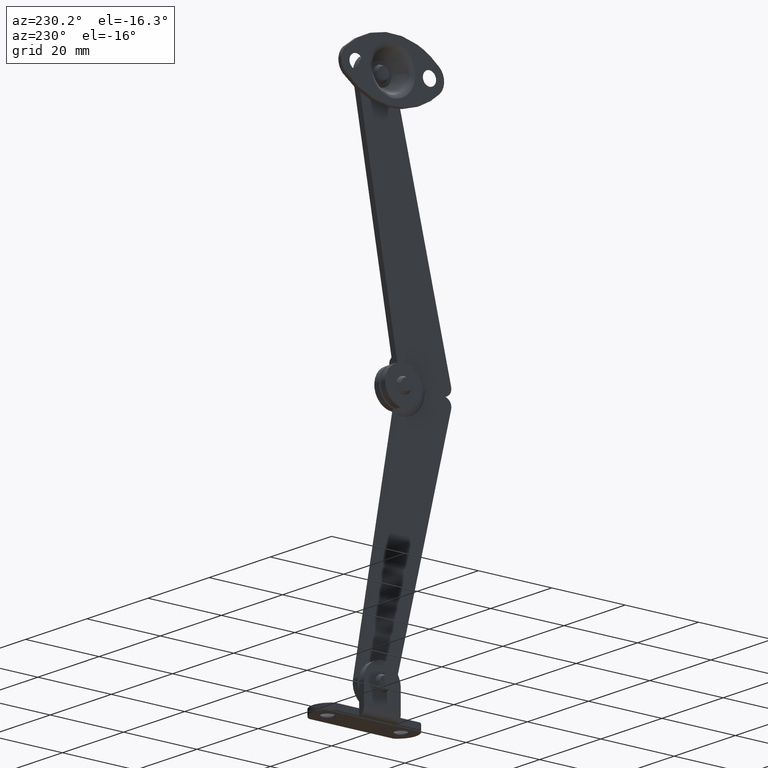
[diagram: clean part render]
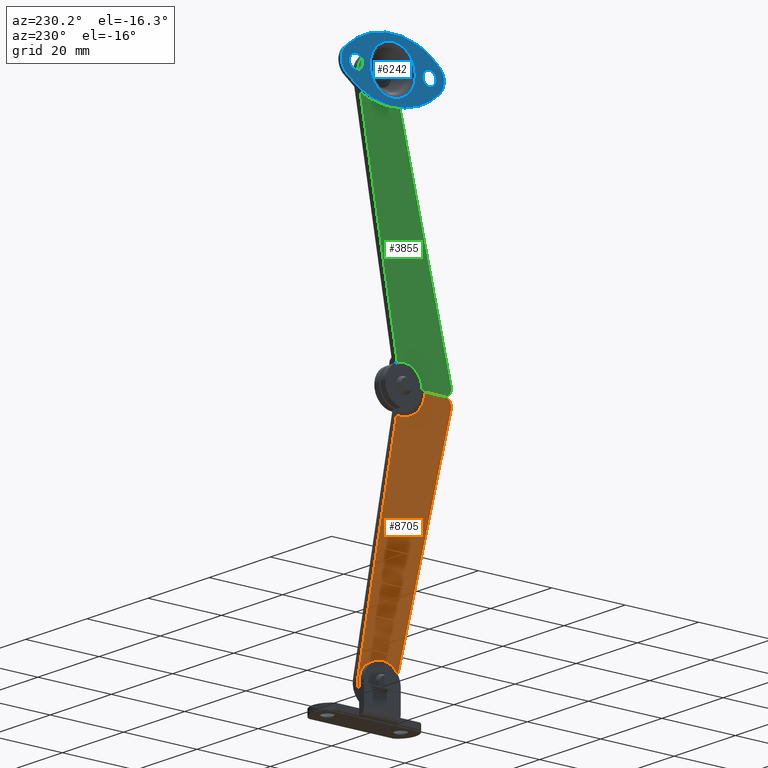
[diagram: same view with three faces highlighted in distinct colors, each labeled with its STEP entity id]
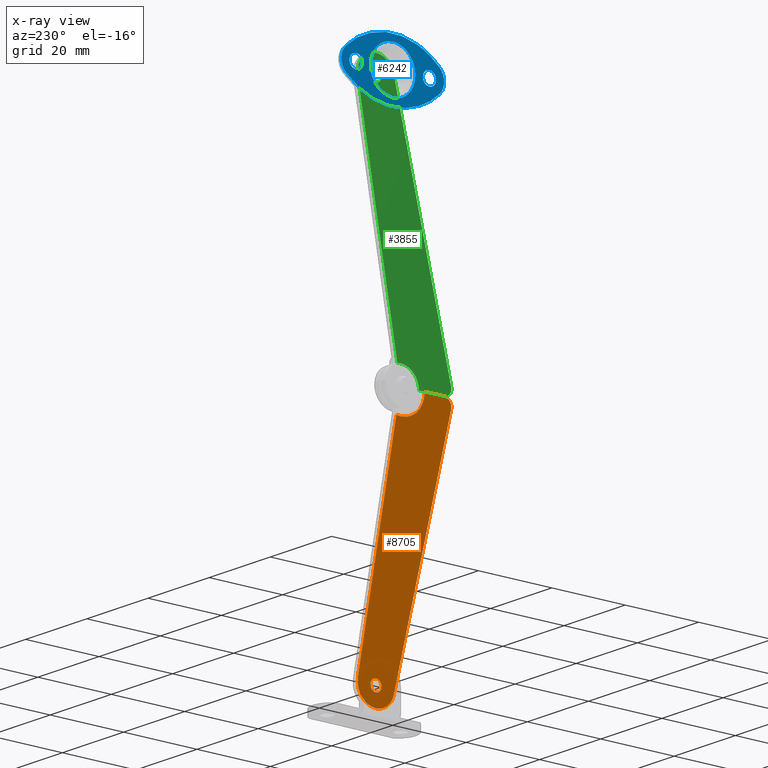
[diagram: x-ray of the same camera — body ghosted, the three highlighted faces saturated]
A machine part, auxiliary view with three faces highlighted in distinct colors.
The next image is the same camera in x-ray (body ghosted, the three faces saturated) — at least one of them is partly hidden behind the body in this view.
Their STEP definitions:

[orange] entity #8705 — the highlighted face is a freeform B-spline surface patch.
#8015=CARTESIAN_POINT('',(5.500013000000140,1.105916866555824,-67.513385768801157));
#8016=VERTEX_POINT('',#8015);
#8022=CARTESIAN_POINT('',(5.500013000000140,4.869979E-014,-68.0));
#8023=VERTEX_POINT('',#8022);
#8024=CARTESIAN_POINT('',(5.500013000000140,1.105916866555824,-67.513385768801157));
#8025=CARTESIAN_POINT('',(5.500013000000137,0.983473396598596,-67.647175787934259));
#8026=CARTESIAN_POINT('',(5.500013000000137,0.647317744048492,-67.901281325757722));
#8027=CARTESIAN_POINT('',(5.500013000000147,0.233237138335175,-68.000404543372781));
#8028=CARTESIAN_POINT('',(5.500013000000140,4.869979E-014,-68.0));
#8029=B_SPLINE_CURVE_WITH_KNOTS('',3,(#8024,#8025,#8026,#8027,#8028),.UNSPECIFIED.,.F.,.U.,(4,1,4),(0.000000109818477,0.544085645837482,1.243582495991090),.UNSPECIFIED.);
#8030=EDGE_CURVE('',#8016,#8023,#8029,.T.);
#8032=CARTESIAN_POINT('',(5.500013000000139,-1.499999999995161,-66.499996209384832));
#8033=VERTEX_POINT('',#8032);
#8034=CARTESIAN_POINT('',(5.500013000000140,4.869979E-014,-68.0));
#8035=CARTESIAN_POINT('',(5.500013000000142,-0.220961695241162,-68.000305557496958));
#8036=CARTESIAN_POINT('',(5.500013000000156,-0.564260409629623,-67.922676075167544));
#8037=CARTESIAN_POINT('',(5.500013000000133,-0.992571130623767,-67.651383561940477));
#8038=CARTESIAN_POINT('',(5.500013000000143,-1.272508003794273,-67.334845226936210));
#8039=CARTESIAN_POINT('',(5.500013000000131,-1.458084867652707,-66.929481579151272));
#8040=CARTESIAN_POINT('',(5.500013000000147,-1.500068658468871,-66.647263764562197));
#8041=CARTESIAN_POINT('',(5.500013000000139,-1.499999999995161,-66.499996209384832));
#8042=B_SPLINE_CURVE_WITH_KNOTS('',3,(#8034,#8035,#8036,#8037,#8038,#8039,#8040,#8041),.UNSPECIFIED.,.F.,.U.,(4,1,1,1,1,4),(0.000000368183724,0.662703733667904,1.030907449646536,1.509450104081498,1.914465666482437,2.356255753075678),.UNSPECIFIED.);
#8043=EDGE_CURVE('',#8023,#8033,#8042,.T.);
#8045=CARTESIAN_POINT('',(5.500013000000140,4.869979E-014,-65.0));
#8046=VERTEX_POINT('',#8045);
#8047=CARTESIAN_POINT('',(5.500013000000139,-1.499999999995161,-66.499996209384832));
#8048=CARTESIAN_POINT('',(5.500013000000139,-1.500020453523283,-66.377280023987680));
#8049=CARTESIAN_POINT('',(5.500013000000133,-1.465221779142598,-66.095007786825988));
#8050=CARTESIAN_POINT('',(5.500013000000148,-1.303650668734076,-65.718087050627773));
#8051=CARTESIAN_POINT('',(5.500013000000120,-0.989948443533951,-65.335581434411026));
#8052=CARTESIAN_POINT('',(5.500013000000149,-0.552293478771819,-65.065919101511398));
#8053=CARTESIAN_POINT('',(5.500013000000156,-0.171792199790931,-64.999929407194458));
#8054=CARTESIAN_POINT('',(5.500013000000140,4.869979E-014,-65.0));
#8055=B_SPLINE_CURVE_WITH_KNOTS('',3,(#8047,#8048,#8049,#8050,#8051,#8052,#8053,#8054),.UNSPECIFIED.,.F.,.U.,(4,1,1,1,1,4),(0.000000373356760,0.368161913734736,0.846804489907758,1.214887288878097,1.840828086476519,2.356251480062229),.UNSPECIFIED.);
#8056=EDGE_CURVE('',#8033,#8046,#8055,.T.);
#8058=CARTESIAN_POINT('',(5.500013000000140,1.074975964918558,-65.453852862674125));
#8059=VERTEX_POINT('',#8058);
#8060=CARTESIAN_POINT('',(5.500013000000140,4.869979E-014,-65.0));
#8061=CARTESIAN_POINT('',(5.500013000000146,0.212279634525650,-64.999682104539630));
#8062=CARTESIAN_POINT('',(5.500013000000134,0.611467732446949,-65.086354019385780));
#8063=CARTESIAN_POINT('',(5.500013000000143,0.944476957366229,-65.319502282329879));
#8064=CARTESIAN_POINT('',(5.500013000000140,1.074975964918558,-65.453852862674125));
#8065=B_SPLINE_CURVE_WITH_KNOTS('',3,(#8060,#8061,#8062,#8063,#8064),.UNSPECIFIED.,.F.,.U.,(4,1,4),(0.000000091365120,0.636685670303350,1.198513690536688),.UNSPECIFIED.);
#8066=EDGE_CURVE('',#8046,#8059,#8065,.T.);
#8101=CARTESIAN_POINT('',(5.500013000000140,1.499999999995259,-66.500003790615153));
#8102=VERTEX_POINT('',#8101);
#8103=CARTESIAN_POINT('',(5.500013000000140,1.074975964918558,-65.453852862674125));
#8104=CARTESIAN_POINT('',(5.500013000000144,1.226645277851328,-65.609228656370249));
#8105=CARTESIAN_POINT('',(5.500013000000131,1.434156463586788,-65.945313296758556));
#8106=CARTESIAN_POINT('',(5.500013000000146,1.500092784276270,-66.331158953923477));
#8107=CARTESIAN_POINT('',(5.500013000000140,1.499999999995259,-66.500003790615153));
#8108=B_SPLINE_CURVE_WITH_KNOTS('',3,(#8103,#8104,#8105,#8106,#8107),.UNSPECIFIED.,.F.,.U.,(4,1,4),(0.000000076971093,0.651215797618409,1.157743025367422),.UNSPECIFIED.);
#8109=EDGE_CURVE('',#8059,#8102,#8108,.T.);
#8111=CARTESIAN_POINT('',(5.500013000000140,1.499999999995259,-66.500003790615153));
#8112=CARTESIAN_POINT('',(5.500013000000147,1.500035003963641,-66.639086040052320));
#8113=CARTESIAN_POINT('',(5.500013000000129,1.448095613387188,-67.009974102688048));
#8114=CARTESIAN_POINT('',(5.500013000000140,1.262921879888632,-67.342721006027489));
#8115=CARTESIAN_POINT('',(5.500013000000140,1.105916866555824,-67.513385768801157));
#8116=B_SPLINE_CURVE_WITH_KNOTS('',3,(#8111,#8112,#8113,#8114,#8115),.UNSPECIFIED.,.F.,.U.,(4,1,4),(0.000000079512168,0.417261241583899,1.112668617737774),.UNSPECIFIED.);
#8117=EDGE_CURVE('',#8102,#8016,#8116,.T.);
#8150=CARTESIAN_POINT('',(5.500013000000100,-5.572154147600330,-6.446320199999280));
#8151=VERTEX_POINT('',#8150);
#8161=CARTESIAN_POINT('',(5.500013000000140,-13.256426457448740,-0.000968127335390));
#8162=VERTEX_POINT('',#8161);
#8163=CARTESIAN_POINT('',(5.500013000000100,-5.572154147600330,-6.446320199999280));
#8164=CARTESIAN_POINT('',(5.500013000000101,-6.304633461454909,-6.576154848774686));
#8165=CARTESIAN_POINT('',(5.500013000000082,-7.632900203850487,-6.581093878276266));
#8166=CARTESIAN_POINT('',(5.500013000000106,-9.268888857776593,-6.082603816124885));
#8167=CARTESIAN_POINT('',(5.500013000000087,-10.465494537459120,-5.407113255734342));
#8168=CARTESIAN_POINT('',(5.500013000000122,-11.289889019471440,-4.715606154300967));
#8169=CARTESIAN_POINT('',(5.500013000000114,-11.994325645573900,-3.906000806573013));
#8170=CARTESIAN_POINT('',(5.500013000000018,-12.538997401653759,-3.048782270563066));
#8171=CARTESIAN_POINT('',(5.500013000000243,-13.091293655838550,-1.726475536641786));
#8172=CARTESIAN_POINT('',(5.500013000000062,-13.256722984335710,-0.685363525818615));
#8173=CARTESIAN_POINT('',(5.500013000000140,-13.256426457448740,-0.000968127335390));
#8174=B_SPLINE_CURVE_WITH_KNOTS('',3,(#8163,#8164,#8165,#8166,#8167,#8168,#8169,#8170,#8171,#8172,#8173),.UNSPECIFIED.,.F.,.U.,(4,1,1,1,1,1,1,1,4),(0.000000196268735,2.231566059503461,3.927584019687060,5.088006689909968,6.337658077813851,7.141025297300815,8.301459637014816,9.372634838872905,11.425662684101811),.UNSPECIFIED.);
#8175=EDGE_CURVE('',#8151,#8162,#8174,.T.);
#8525=CARTESIAN_POINT('',(5.500013000000140,-20.488352710259999,-2.463788323870580));
#8526=VERTEX_POINT('',#8525);
#8527=CARTESIAN_POINT('',(5.500013000000140,-18.606084933969299,-0.000968127335389));
#8528=VERTEX_POINT('',#8527);
#8529=CARTESIAN_POINT('',(5.500013000000140,-20.488352710259999,-2.463788323870580));
#8530=CARTESIAN_POINT('',(5.500013000000137,-20.557386445015041,-2.176320858268800));
#8531=CARTESIAN_POINT('',(5.500013000000145,-20.562421958604169,-1.703252057021550));
#8532=CARTESIAN_POINT('',(5.500013000000141,-20.373141151802599,-1.158059457069924));
#8533=CARTESIAN_POINT('',(5.500013000000130,-20.153318056429061,-0.792821715087738));
#8534=CARTESIAN_POINT('',(5.500013000000154,-19.866485645781388,-0.475944410369172));
#8535=CARTESIAN_POINT('',(5.500013000000111,-19.359409156498611,-0.129077473542477));
#8536=CARTESIAN_POINT('',(5.500013000000180,-18.901566078760560,-0.009926698918449));
#8537=CARTESIAN_POINT('',(5.500013000000140,-18.606084933969299,-0.000968127335389));
#8538=B_SPLINE_CURVE_WITH_KNOTS('',3,(#8529,#8530,#8531,#8532,#8533,#8534,#8535,#8536,#8537),.UNSPECIFIED.,.F.,.U.,(4,1,1,1,1,1,4),(0.000000371631070,0.886638648515984,1.385411978884858,1.717901486193832,2.161140711783426,2.659914482265244,3.546552521936531),.UNSPECIFIED.);
#8539=EDGE_CURVE('',#8526,#8528,#8538,.T.);
#8590=CARTESIAN_POINT('',(5.500013000000140,4.921107031915490,-65.615023812553702));
#8591=VERTEX_POINT('',#8590);
#8597=CARTESIAN_POINT('',(5.500013000000140,4.921107031915490,-65.615023812553702));
#8598=CARTESIAN_POINT('',(5.500013000000100,-5.572154147600330,-6.446320199999280));
#8599=QUASI_UNIFORM_CURVE('',1,(#8597,#8598),.UNSPECIFIED.,.F.,.U.);
#8600=EDGE_CURVE('',#8591,#8151,#8599,.T.);
#8623=CARTESIAN_POINT('',(5.500013000000140,1.094657818442403,-71.378739003897635));
#8624=VERTEX_POINT('',#8623);
#8625=CARTESIAN_POINT('',(5.500013000000140,-4.827430288942176,-67.802297413259652));
#8626=VERTEX_POINT('',#8625);
#8627=CARTESIAN_POINT('',(5.500013000000140,1.094657818442403,-71.378739003897635));
#8628=CARTESIAN_POINT('',(5.500013000000139,0.764637874184253,-71.452808006401952));
#8629=CARTESIAN_POINT('',(5.500013000000150,0.010066181099051,-71.543261756964711));
#8630=CARTESIAN_POINT('',(5.500013000000116,-1.106410011154506,-71.422693031491107));
#8631=CARTESIAN_POINT('',(5.500013000000183,-2.068411866898942,-71.081938540022279));
#8632=CARTESIAN_POINT('',(5.500013000000076,-2.847627407357506,-70.636344610977602));
#8633=CARTESIAN_POINT('',(5.500013000000152,-3.577378187540967,-70.045631827285789));
#8634=CARTESIAN_POINT('',(5.500013000000199,-4.334637743223582,-69.111776383897208));
#8635=CARTESIAN_POINT('',(5.500013000000048,-4.698087683665779,-68.282604349399193));
#8636=CARTESIAN_POINT('',(5.500013000000140,-4.827430288942176,-67.802297413259652));
#8637=B_SPLINE_CURVE_WITH_KNOTS('',3,(#8627,#8628,#8629,#8630,#8631,#8632,#8633,#8634,#8635,#8636),.UNSPECIFIED.,.F.,.U.,(4,1,1,1,1,1,1,4),(0.000000174066917,1.014704987652559,2.268177146686372,3.342608560299478,4.058805244113811,4.954151294087192,6.147951077396038,7.640157704867540),.UNSPECIFIED.);
#8638=EDGE_CURVE('',#8624,#8626,#8637,.T.);
#8640=CARTESIAN_POINT('',(5.500013000000140,4.921107031915490,-65.615023812553702));
#8641=CARTESIAN_POINT('',(5.500013000000137,4.981012479729194,-65.947910187450390));
#8642=CARTESIAN_POINT('',(5.500013000000146,5.035950999698179,-66.665764118721441));
#8643=CARTESIAN_POINT('',(5.500013000000132,4.870364768112771,-67.855794335468843));
#8644=CARTESIAN_POINT('',(5.500013000000144,4.344367031747255,-69.117437235680015));
#8645=CARTESIAN_POINT('',(5.500013000000130,3.488806449538145,-70.159053334297994));
#8646=CARTESIAN_POINT('',(5.500013000000130,2.386474239263377,-70.956935395691588));
#8647=CARTESIAN_POINT('',(5.500013000000180,1.580058904461631,-71.270048316881656));
#8648=CARTESIAN_POINT('',(5.500013000000140,1.094657818442403,-71.378739003897635));
#8649=B_SPLINE_CURVE_WITH_KNOTS('',3,(#8640,#8641,#8642,#8643,#8644,#8645,#8646,#8647,#8648),.UNSPECIFIED.,.F.,.U.,(4,1,1,1,1,1,4),(0.000000174081114,1.014705843578155,2.148798454451528,3.581356370058533,5.073532299059660,6.147956263410171,7.640164149579418),.UNSPECIFIED.);
#8650=EDGE_CURVE('',#8591,#8624,#8649,.T.);
#8668=CARTESIAN_POINT('',(5.500013000000140,-20.488352710259999,-2.463788323870580));
#8669=CARTESIAN_POINT('',(5.500013000000140,-4.827430288942176,-67.802297413259652));
#8670=QUASI_UNIFORM_CURVE('',1,(#8668,#8669),.UNSPECIFIED.,.F.,.U.);
#8671=EDGE_CURVE('',#8526,#8626,#8670,.T.);
#8679=CARTESIAN_POINT('',(5.500013000000100,6.274260438102990,-75.070672136613766));
#8680=CARTESIAN_POINT('',(5.500013000000100,-21.818622317738519,-75.070672136613766));
#8681=CARTESIAN_POINT('',(5.500013000000100,6.274260438102990,3.570376784542169));
#8682=CARTESIAN_POINT('',(5.500013000000100,-21.818622317738519,3.570376784542169));
#8683=B_SPLINE_SURFACE_WITH_KNOTS('',1,1,((#8679,#8681),(#8680,#8682)),.UNSPECIFIED.,.F.,.F.,.U.,(2,2),(2,2),(0.0,28.092882755841519),(0.0,78.641048921155928),.UNSPECIFIED.);
#8684=ORIENTED_EDGE('',*,*,#8600,.F.);
#8685=ORIENTED_EDGE('',*,*,#8650,.T.);
#8686=ORIENTED_EDGE('',*,*,#8638,.T.);
#8687=ORIENTED_EDGE('',*,*,#8671,.F.);
#8688=ORIENTED_EDGE('',*,*,#8539,.T.);
#8689=CARTESIAN_POINT('',(5.500013000000140,-13.256426457448740,-0.000968127335390));
#8690=CARTESIAN_POINT('',(5.500013000000140,-18.606084933969299,-0.000968127335389));
#8691=QUASI_UNIFORM_CURVE('',1,(#8689,#8690),.UNSPECIFIED.,.F.,.U.);
#8692=EDGE_CURVE('',#8162,#8528,#8691,.T.);
#8693=ORIENTED_EDGE('',*,*,#8692,.F.);
#8694=ORIENTED_EDGE('',*,*,#8175,.F.);
#8695=EDGE_LOOP('',(#8684,#8685,#8686,#8687,#8688,#8693,#8694));
#8696=FACE_OUTER_BOUND('',#8695,.T.);
#8697=ORIENTED_EDGE('',*,*,#8043,.F.);
#8698=ORIENTED_EDGE('',*,*,#8030,.F.);
#8699=ORIENTED_EDGE('',*,*,#8117,.F.);
#8700=ORIENTED_EDGE('',*,*,#8109,.F.);
#8701=ORIENTED_EDGE('',*,*,#8066,.F.);
#8702=ORIENTED_EDGE('',*,*,#8056,.F.);
#8703=EDGE_LOOP('',(#8697,#8698,#8699,#8700,#8701,#8702));
#8704=FACE_BOUND('',#8703,.T.);
#8705=ADVANCED_FACE('',(#8696,#8704),#8683,.T.);

[blue] entity #6242 — the highlighted face is a freeform B-spline surface patch.
#4857=CARTESIAN_POINT('',(-0.000000421743439,-8.760886090230216,65.194342282926641));
#4858=VERTEX_POINT('',#4857);
#4864=CARTESIAN_POINT('',(0.0,-9.999908999999999,64.700021000160845));
#4865=VERTEX_POINT('',#4864);
#4866=CARTESIAN_POINT('',(0.0,-9.999908999999999,64.700021000160845));
#4867=CARTESIAN_POINT('',(-0.000000082383475,-9.757877935943348,64.699754328913457));
#4868=CARTESIAN_POINT('',(-0.000000237349177,-9.302610498110662,64.793378839766632));
#4869=CARTESIAN_POINT('',(-0.000000369054043,-8.915680125899122,65.047220358807806));
#4870=CARTESIAN_POINT('',(-0.000000421743439,-8.760886090230216,65.194342282926641));
#4871=B_SPLINE_CURVE_WITH_KNOTS('',3,(#4866,#4867,#4868,#4869,#4870),.UNSPECIFIED.,.F.,.U.,(4,1,4),(0.000000084991423,0.725985241526616,1.366608425286366),.UNSPECIFIED.);
#4872=EDGE_CURVE('',#4865,#4858,#4871,.T.);
#4874=CARTESIAN_POINT('',(0.0,-11.799887999835990,66.499996621423492));
#4875=VERTEX_POINT('',#4874);
#4876=CARTESIAN_POINT('',(0.0,-11.799887999835990,66.499996621423492));
#4877=CARTESIAN_POINT('',(0.0,-11.800302166959520,66.234848951626361));
#4878=CARTESIAN_POINT('',(0.0,-11.703772334083570,65.808165309038287));
#4879=CARTESIAN_POINT('',(0.0,-11.403822046631250,65.347326388263753));
#4880=CARTESIAN_POINT('',(0.0,-11.103746528576311,65.061654310317010));
#4881=CARTESIAN_POINT('',(0.0,-10.662297517231440,64.789510346837815));
#4882=CARTESIAN_POINT('',(0.0,-10.265068675068591,64.699589721517441));
#4883=CARTESIAN_POINT('',(0.0,-9.999908999999999,64.700021000160845));
#4884=B_SPLINE_CURVE_WITH_KNOTS('',3,(#4876,#4877,#4878,#4879,#4880,#4881,#4882,#4883),.UNSPECIFIED.,.F.,.U.,(4,1,1,1,1,4),(0.000000345430553,0.795230524561228,1.281198793452499,1.634593679212085,2.032239266735873,2.827469447795804),.UNSPECIFIED.);
#4885=EDGE_CURVE('',#4875,#4865,#4884,.T.);
#4887=CARTESIAN_POINT('',(0.0,-9.999908999999999,68.299978999839169));
#4888=VERTEX_POINT('',#4887);
#4889=CARTESIAN_POINT('',(0.0,-9.999908999999999,68.299978999839169));
#4890=CARTESIAN_POINT('',(0.0,-10.206085776661160,68.300097782567121));
#4891=CARTESIAN_POINT('',(0.0,-10.603621945427790,68.230940532123611));
#4892=CARTESIAN_POINT('',(0.0,-11.060918609176090,67.979229722514248));
#4893=CARTESIAN_POINT('',(0.0,-11.403821478598131,67.652664608075000));
#4894=CARTESIAN_POINT('',(0.0,-11.703766066984381,67.191823383294434));
#4895=CARTESIAN_POINT('',(0.0,-11.800304755237370,66.765148135863114));
#4896=CARTESIAN_POINT('',(0.0,-11.799887999835990,66.499996621423492));
#4897=B_SPLINE_CURVE_WITH_KNOTS('',3,(#4889,#4890,#4891,#4892,#4893,#4894,#4895,#4896),.UNSPECIFIED.,.F.,.U.,(4,1,1,1,1,4),(0.000000340818676,0.618505547101588,1.192877714186817,1.546273081903639,2.032242006968378,2.827473256333979),.UNSPECIFIED.);
#4898=EDGE_CURVE('',#4888,#4875,#4897,.T.);
#4900=CARTESIAN_POINT('',(0.000000421473902,-8.625523919700655,67.662322918417487));
#4901=VERTEX_POINT('',#4900);
#4902=CARTESIAN_POINT('',(0.000000421473902,-8.625523919700655,67.662322918417487));
#4903=CARTESIAN_POINT('',(0.000000382789766,-8.751669094414028,67.811676123302803));
#4904=CARTESIAN_POINT('',(0.000000309559341,-8.990466333229316,68.014951679554144));
#4905=CARTESIAN_POINT('',(0.000000164820464,-9.462445624670639,68.241775059212657));
#4906=CARTESIAN_POINT('',(0.000000064952214,-9.788106198437154,68.300152163402728));
#4907=CARTESIAN_POINT('',(0.0,-9.999908999999999,68.299978999839169));
#4908=B_SPLINE_CURVE_WITH_KNOTS('',3,(#4902,#4903,#4904,#4905,#4906,#4907),.UNSPECIFIED.,.F.,.U.,(4,1,1,4),(0.000000100124064,0.586453092230430,0.928535005090327,1.563873237647242),.UNSPECIFIED.);
#4909=EDGE_CURVE('',#4901,#4888,#4908,.T.);
#4944=CARTESIAN_POINT('',(0.0,-8.199930000164006,66.500003378576508));
#4945=VERTEX_POINT('',#4944);
#4946=CARTESIAN_POINT('',(0.0,-8.199930000164006,66.500003378576508));
#4947=CARTESIAN_POINT('',(0.000000071599567,-8.199809824120766,66.697457201537588));
#4948=CARTESIAN_POINT('',(0.000000224298374,-8.269954899271198,67.118562453981028));
#4949=CARTESIAN_POINT('',(0.000000359560798,-8.480870590561350,67.491582225603807));
#4950=CARTESIAN_POINT('',(0.000000421473902,-8.625523919700655,67.662322918417487));
#4951=B_SPLINE_CURVE_WITH_KNOTS('',3,(#4946,#4947,#4948,#4949,#4950),.UNSPECIFIED.,.F.,.U.,(4,1,4),(0.000000057578694,0.592331848331789,1.263598119085359),.UNSPECIFIED.);
#4952=EDGE_CURVE('',#4945,#4901,#4951,.T.);
#4954=CARTESIAN_POINT('',(-0.000000421743439,-8.760886090230216,65.194342282926641));
#4955=CARTESIAN_POINT('',(-0.000000377781697,-8.617328145883226,65.330442098548545));
#4956=CARTESIAN_POINT('',(-0.000000250506997,-8.319949430696102,65.724467730559510));
#4957=CARTESIAN_POINT('',(-0.000000093432228,-8.199349914847245,66.210749971663503));
#4958=CARTESIAN_POINT('',(0.0,-8.199930000164006,66.500003378576508));
#4959=B_SPLINE_CURVE_WITH_KNOTS('',3,(#4954,#4955,#4956,#4957,#4958),.UNSPECIFIED.,.F.,.U.,(4,1,4),(0.000000093073227,0.593481353704780,1.460865547543909),.UNSPECIFIED.);
#4960=EDGE_CURVE('',#4858,#4945,#4959,.T.);
#5050=CARTESIAN_POINT('',(-0.000000421743439,11.239097909769701,65.194342282926641));
#5051=VERTEX_POINT('',#5050);
#5057=CARTESIAN_POINT('',(0.0,10.000074999999921,64.700021000160845));
#5058=VERTEX_POINT('',#5057);
#5059=CARTESIAN_POINT('',(0.0,10.000074999999921,64.700021000160845));
#5060=CARTESIAN_POINT('',(-0.000000072690991,10.213630907961729,64.699857135730596));
#5061=CARTESIAN_POINT('',(-0.000000227702251,10.669032188582680,64.782070902341857));
#5062=CARTESIAN_POINT('',(-0.000000362047243,11.063718880237669,65.027545365419570));
#5063=CARTESIAN_POINT('',(-0.000000421743439,11.239097909769701,65.194342282926641));
#5064=B_SPLINE_CURVE_WITH_KNOTS('',3,(#5059,#5060,#5061,#5062,#5063),.UNSPECIFIED.,.F.,.U.,(4,1,4),(0.000000084993408,0.640623269047284,1.366608425286361),.UNSPECIFIED.);
#5065=EDGE_CURVE('',#5058,#5051,#5064,.T.);
#5067=CARTESIAN_POINT('',(0.0,8.200096000163924,66.499996621423477));
#5068=VERTEX_POINT('',#5067);
#5069=CARTESIAN_POINT('',(0.0,8.200096000163924,66.499996621423477));
#5070=CARTESIAN_POINT('',(0.0,8.199677849266770,66.234845712347422));
#5071=CARTESIAN_POINT('',(0.0,8.296218870645742,65.808170652352032));
#5072=CARTESIAN_POINT('',(0.0,8.596158084408902,65.347322956155566));
#5073=CARTESIAN_POINT('',(0.0,8.896238054774184,65.061655601699698));
#5074=CARTESIAN_POINT('',(0.0,9.337686915610066,64.789509695602931));
#5075=CARTESIAN_POINT('',(0.0,9.734915513480228,64.699590016964208));
#5076=CARTESIAN_POINT('',(0.0,10.000074999999921,64.700021000160845));
#5077=B_SPLINE_CURVE_WITH_KNOTS('',3,(#5069,#5070,#5071,#5072,#5073,#5074,#5075,#5076),.UNSPECIFIED.,.F.,.U.,(4,1,1,1,1,4),(0.000000345433116,0.795230524561890,1.281198793453241,1.634593679212557,2.032239266735983,2.827469447795792),.UNSPECIFIED.);
#5078=EDGE_CURVE('',#5068,#5058,#5077,.T.);
#5080=CARTESIAN_POINT('',(0.0,10.000074999999921,68.299978999839169));
#5081=VERTEX_POINT('',#5080);
#5082=CARTESIAN_POINT('',(0.0,10.000074999999921,68.299978999839169));
#5083=CARTESIAN_POINT('',(0.0,9.823369752902369,68.300025104682646));
#5084=CARTESIAN_POINT('',(0.0,9.425726493124948,68.241055807133606));
#5085=CARTESIAN_POINT('',(0.0,8.960466843884614,67.999728010662906));
#5086=CARTESIAN_POINT('',(0.0,8.553197735162827,67.611874840484901));
#5087=CARTESIAN_POINT('',(0.0,8.274173906023066,67.133214241818180));
#5088=CARTESIAN_POINT('',(0.0,8.199986068511807,66.706159472511075));
#5089=CARTESIAN_POINT('',(0.0,8.200096000163924,66.499996621423477));
#5090=B_SPLINE_CURVE_WITH_KNOTS('',3,(#5082,#5083,#5084,#5085,#5086,#5087,#5088,#5089),.UNSPECIFIED.,.F.,.U.,(4,1,1,1,1,4),(0.000000340815223,0.530145365151284,1.192877714186829,1.546273081904171,2.208968051855013,2.827473256333995),.UNSPECIFIED.);
#5091=EDGE_CURVE('',#5081,#5068,#5090,.T.);
#5093=CARTESIAN_POINT('',(0.000000421473902,11.374460080299270,67.662322918417487));
#5094=VERTEX_POINT('',#5093);
#5095=CARTESIAN_POINT('',(0.000000421473902,11.374460080299270,67.662322918417487));
#5096=CARTESIAN_POINT('',(0.000000392447997,11.279809450242141,67.774283180659452));
#5097=CARTESIAN_POINT('',(0.000000318564391,11.038882253382811,67.997224636343162));
#5098=CARTESIAN_POINT('',(0.000000174827416,10.570170067347011,68.238352113460550));
#5099=CARTESIAN_POINT('',(0.000000059949604,10.195564782885080,68.300092155581567));
#5100=CARTESIAN_POINT('',(0.0,10.000074999999921,68.299978999839169));
#5101=B_SPLINE_CURVE_WITH_KNOTS('',3,(#5095,#5096,#5097,#5098,#5099,#5100),.UNSPECIFIED.,.F.,.U.,(4,1,1,4),(0.000000100124633,0.439841816475842,0.977420245705609,1.563873237647240),.UNSPECIFIED.);
#5102=EDGE_CURVE('',#5094,#5081,#5101,.T.);
#5137=CARTESIAN_POINT('',(0.0,11.800053999835910,66.500003378576508));
#5138=VERTEX_POINT('',#5137);
#5139=CARTESIAN_POINT('',(0.0,11.800053999835910,66.500003378576508));
#5140=CARTESIAN_POINT('',(0.000000085923697,11.800303725934450,66.736959594277067));
#5141=CARTESIAN_POINT('',(0.000000238571114,11.715614873701920,67.157923099288183));
#5142=CARTESIAN_POINT('',(0.000000370467704,11.493508510225110,67.521660715911509));
#5143=CARTESIAN_POINT('',(0.000000421473902,11.374460080299270,67.662322918417487));
#5144=B_SPLINE_CURVE_WITH_KNOTS('',3,(#5139,#5140,#5141,#5142,#5143),.UNSPECIFIED.,.F.,.U.,(4,1,4),(0.000000057580513,0.710760737602515,1.263598119085342),.UNSPECIFIED.);
#5145=EDGE_CURVE('',#5138,#5094,#5144,.T.);
#5147=CARTESIAN_POINT('',(-0.000000421743439,11.239097909769701,65.194342282926641));
#5148=CARTESIAN_POINT('',(-0.000000371036919,11.404856138074321,65.351323049782422));
#5149=CARTESIAN_POINT('',(-0.000000240741492,11.693090944632070,65.754700424529020));
#5150=CARTESIAN_POINT('',(-0.000000083579123,11.800433602725381,66.241253836647999));
#5151=CARTESIAN_POINT('',(0.0,11.800053999835910,66.500003378576508));
#5152=B_SPLINE_CURVE_WITH_KNOTS('',3,(#5147,#5148,#5149,#5150,#5151),.UNSPECIFIED.,.F.,.U.,(4,1,4),(0.000000093073150,0.684804458388518,1.460865547543915),.UNSPECIFIED.);
#5153=EDGE_CURVE('',#5051,#5138,#5152,.T.);
#5213=CARTESIAN_POINT('',(3.331718E-016,1.943726052329239,60.656489754556290));
#5214=VERTEX_POINT('',#5213);
#5225=CARTESIAN_POINT('',(0.0,8.143632E-015,60.341698035283940));
#5226=VERTEX_POINT('',#5225);
#5227=CARTESIAN_POINT('',(3.331718E-016,1.943726052329239,60.656489754556290));
#5228=CARTESIAN_POINT('',(1.127775E-016,1.318277787025687,60.448253932779188));
#5229=CARTESIAN_POINT('',(-2.791618E-019,0.659216614891765,60.341434273958512));
#5230=CARTESIAN_POINT('',(0.0,8.143632E-015,60.341698035283940));
#5231=B_SPLINE_CURVE_WITH_KNOTS('',3,(#5227,#5228,#5229,#5230),.UNSPECIFIED.,.F.,.U.,(4,4),(5.875506E-009,1.977570504927585),.UNSPECIFIED.);
#5232=EDGE_CURVE('',#5214,#5226,#5231,.T.);
#5234=CARTESIAN_POINT('',(0.0,-6.158301964715768,66.500001875053272));
#5235=VERTEX_POINT('',#5234);
#5236=CARTESIAN_POINT('',(0.0,8.143632E-015,60.341698035283940));
#5237=CARTESIAN_POINT('',(0.0,-0.503835702097573,60.341570397593742));
#5238=CARTESIAN_POINT('',(0.0,-1.486235084106276,60.462945162099253));
#5239=CARTESIAN_POINT('',(0.0,-2.814530721377489,60.965898998736279));
#5240=CARTESIAN_POINT('',(0.0,-3.829462251123416,61.635216922962762));
#5241=CARTESIAN_POINT('',(0.0,-4.707631854966081,62.471232826769750));
#5242=CARTESIAN_POINT('',(0.0,-5.370498796934555,63.400296278565961));
#5243=CARTESIAN_POINT('',(0.0,-5.985397769456297,64.787252249870676));
#5244=CARTESIAN_POINT('',(0.0,-6.158695970933323,65.819776464527379));
#5245=CARTESIAN_POINT('',(0.0,-6.158301964715768,66.500001875053272));
#5246=B_SPLINE_CURVE_WITH_KNOTS('',3,(#5236,#5237,#5238,#5239,#5240,#5241,#5242,#5243,#5244,#5245),.UNSPECIFIED.,.F.,.U.,(4,1,1,1,1,1,1,4),(0.000000177883173,1.511480397425856,2.947408199475746,4.232157227691577,5.138994329407307,6.574951763553557,7.633005975665872,9.673499859018698),.UNSPECIFIED.);
#5247=EDGE_CURVE('',#5226,#5235,#5246,.T.);
#5249=CARTESIAN_POINT('',(0.0,8.143632E-015,72.658301964716060));
#5250=VERTEX_POINT('',#5249);
#5251=CARTESIAN_POINT('',(0.0,-6.158301964715768,66.500001875053272));
#5252=CARTESIAN_POINT('',(0.0,-6.158436971348502,67.003838199818020));
#5253=CARTESIAN_POINT('',(0.0,-6.040150881913753,67.961044295305356));
#5254=CARTESIAN_POINT('',(0.0,-5.607469749243511,69.125145646183569));
#5255=CARTESIAN_POINT('',(0.0,-5.016459332661936,70.124983240789192));
#5256=CARTESIAN_POINT('',(0.0,-4.343028726426492,70.915467383983525));
#5257=CARTESIAN_POINT('',(0.0,-3.518401143714665,71.583714617930738));
#5258=CARTESIAN_POINT('',(0.0,-2.558188218580305,72.143469907812161));
#5259=CARTESIAN_POINT('',(0.0,-1.385505736416382,72.554919340001049));
#5260=CARTESIAN_POINT('',(0.0,-0.453444086742229,72.658380364257368));
#5261=CARTESIAN_POINT('',(0.0,8.143632E-015,72.658301964716060));
#5262=B_SPLINE_CURVE_WITH_KNOTS('',3,(#5251,#5252,#5253,#5254,#5255,#5256,#5257,#5258,#5259,#5260,#5261),.UNSPECIFIED.,.F.,.U.,(4,1,1,1,1,1,1,1,4),(0.000000178561823,1.511480067449014,2.871821136849130,3.703163987052185,4.987856088991801,5.970338234515552,6.877242404100734,8.313168248335378,9.673497745383271),.UNSPECIFIED.);
#5263=EDGE_CURVE('',#5235,#5250,#5262,.T.);
#5265=CARTESIAN_POINT('',(3.256774E-016,5.945111631317094,68.106340758948278));
#5266=VERTEX_POINT('',#5265);
#5267=CARTESIAN_POINT('',(0.0,8.143632E-015,72.658301964716060));
#5268=CARTESIAN_POINT('',(-2.224151E-021,0.419178760763068,72.658333051466670));
#5269=CARTESIAN_POINT('',(7.061668E-018,1.383312682706464,72.559601713198660));
#5270=CARTESIAN_POINT('',(4.206535E-017,2.780208911568059,72.070358686876446));
#5271=CARTESIAN_POINT('',(1.044749E-016,4.076761143374545,71.198066256578073));
#5272=CARTESIAN_POINT('',(1.965016E-016,5.236121495914045,69.911818442442268));
#5273=CARTESIAN_POINT('',(2.764415E-016,5.759740944855195,68.794505817233087));
#5274=CARTESIAN_POINT('',(3.256774E-016,5.945111631317094,68.106340758948278));
#5275=B_SPLINE_CURVE_WITH_KNOTS('',3,(#5267,#5268,#5269,#5270,#5271,#5272,#5273,#5274),.UNSPECIFIED.,.F.,.U.,(4,1,1,1,1,4),(0.000000042016804,1.257565316730881,2.892412738523861,4.401484378121653,5.910573247269966,8.048440311318684),.UNSPECIFIED.);
#5276=EDGE_CURVE('',#5250,#5266,#5275,.T.);
#5365=CARTESIAN_POINT('',(3.256774E-016,5.945111631317094,68.106340758948278));
#5366=CARTESIAN_POINT('',(2.446334E-016,6.135639676944957,67.403430974046429));
#5367=CARTESIAN_POINT('',(1.291939E-016,6.247580143420304,66.101421867585231));
#5368=CARTESIAN_POINT('',(5.928810E-017,5.872862069185254,64.478247303353797));
#5369=CARTESIAN_POINT('',(5.044858E-017,5.213567017013196,63.118706369059431));
#5370=CARTESIAN_POINT('',(9.368027E-017,4.348128820698851,62.052847769612690));
#5371=CARTESIAN_POINT('',(1.946429E-016,3.179332622375527,61.171475562676207));
#5372=CARTESIAN_POINT('',(2.812863E-016,2.381385543793306,60.801966282522052));
#5373=CARTESIAN_POINT('',(3.331718E-016,1.943726052329239,60.656489754556290));
#5374=B_SPLINE_CURVE_WITH_KNOTS('',3,(#5365,#5366,#5367,#5368,#5369,#5370,#5371,#5372,#5373),.UNSPECIFIED.,.F.,.U.,(4,1,1,1,1,1,4),(0.000000169152852,2.184628045904642,3.859554720491290,4.951782664761785,6.699530471729474,7.937498748883669,9.321092681307880),.UNSPECIFIED.);
#5375=EDGE_CURVE('',#5266,#5214,#5374,.T.);
#5918=CARTESIAN_POINT('',(0.0,12.758699925988420,63.603452310471098));
#5919=VERTEX_POINT('',#5918);
#5925=CARTESIAN_POINT('',(0.0,12.758688822342060,69.396550764430202));
#5926=VERTEX_POINT('',#5925);
#5927=CARTESIAN_POINT('',(0.0,12.758688822342060,69.396550764430202));
#5928=CARTESIAN_POINT('',(0.0,13.052043003067210,69.117445795702693));
#5929=CARTESIAN_POINT('',(0.0,13.469165866559949,68.577128422868839));
#5930=CARTESIAN_POINT('',(0.0,13.883376270683710,67.610782533706583));
#5931=CARTESIAN_POINT('',(0.0,14.022858651420179,66.770601555333542));
#5932=CARTESIAN_POINT('',(0.0,13.979928169326040,65.925713958016075));
#5933=CARTESIAN_POINT('',(0.0,13.788678993793431,65.099680674512342));
#5934=CARTESIAN_POINT('',(0.0,13.373530534015231,64.278854281852617));
#5935=CARTESIAN_POINT('',(0.0,12.954176912260881,63.789588107168093));
#5936=CARTESIAN_POINT('',(0.0,12.758699925988420,63.603452310471098));
#5937=B_SPLINE_CURVE_WITH_KNOTS('',3,(#5927,#5928,#5929,#5930,#5931,#5932,#5933,#5934,#5935,#5936),.UNSPECIFIED.,.F.,.U.,(4,1,1,1,1,1,1,4),(0.000000093207735,1.214704441031323,2.024514655892628,3.137997468402008,3.745331437717469,4.555146905473019,5.668639641702956,6.478433844376593),.UNSPECIFIED.);
#5938=EDGE_CURVE('',#5926,#5919,#5937,.T.);
#5979=CARTESIAN_POINT('',(0.0,-6.694841206011450,73.246088820703605));
#5980=VERTEX_POINT('',#5979);
#5981=CARTESIAN_POINT('',(0.0,-6.694841206011450,73.246088820703605));
#5982=CARTESIAN_POINT('',(0.0,-5.780309745906300,73.601180744437315));
#5983=CARTESIAN_POINT('',(0.0,-4.156477263996825,74.086957270043470));
#5984=CARTESIAN_POINT('',(0.0,-1.566925775248167,74.488287780790941));
#5985=CARTESIAN_POINT('',(0.0,1.110658753917461,74.545080704804676));
#5986=CARTESIAN_POINT('',(0.0,3.765276229669405,74.176606038660850));
#5987=CARTESIAN_POINT('',(0.0,6.179205543571962,73.484180935482044));
#5988=CARTESIAN_POINT('',(0.0,8.242569600506805,72.615124125700731));
#5989=CARTESIAN_POINT('',(0.0,10.514161117821800,71.307330354768112));
#5990=CARTESIAN_POINT('',(0.0,11.969401085464730,70.148391377642952));
#5991=CARTESIAN_POINT('',(0.0,12.758688822342060,69.396550764430202));
#5992=B_SPLINE_CURVE_WITH_KNOTS('',3,(#5981,#5982,#5983,#5984,#5985,#5986,#5987,#5988,#5989,#5990,#5991),.UNSPECIFIED.,.F.,.U.,(4,1,1,1,1,1,1,1,4),(0.000000055643433,2.943147329982075,5.068787435298690,7.848452591269099,10.955090306310350,13.080738199242870,15.369870558748280,17.659006941120719,20.929189388420859),.UNSPECIFIED.);
#5993=EDGE_CURVE('',#5980,#5926,#5992,.T.);
#6028=CARTESIAN_POINT('',(0.0,-12.758560935492300,69.396529347144195));
#6029=VERTEX_POINT('',#6028);
#6030=CARTESIAN_POINT('',(0.0,-12.758560935492300,69.396529347144195));
#6031=CARTESIAN_POINT('',(0.0,-12.240571747087870,69.889823360801287));
#6032=CARTESIAN_POINT('',(0.0,-10.399425046714979,71.450402129832455));
#6033=CARTESIAN_POINT('',(0.0,-8.274482901433316,72.633583096600333));
#6034=CARTESIAN_POINT('',(0.0,-6.694841206011450,73.246088820703605));
#6035=B_SPLINE_CURVE_WITH_KNOTS('',3,(#6030,#6031,#6032,#6033,#6034),.UNSPECIFIED.,.F.,.U.,(4,1,4),(5.739009E-009,2.145923010796190,7.228368514743793),.UNSPECIFIED.);
#6036=EDGE_CURVE('',#6029,#5980,#6035,.T.);
#6075=CARTESIAN_POINT('',(0.0,-12.758557489488441,63.603430228084612));
#6076=VERTEX_POINT('',#6075);
#6077=CARTESIAN_POINT('',(0.0,-12.758557489488441,63.603430228084612));
#6078=CARTESIAN_POINT('',(0.0,-13.100969342866501,63.928955603529317));
#6079=CARTESIAN_POINT('',(0.0,-13.505634845450951,64.482075116554370));
#6080=CARTESIAN_POINT('',(0.0,-13.894419771393039,65.456418345139454));
#6081=CARTESIAN_POINT('',(0.0,-14.033836602270400,66.296599360562254));
#6082=CARTESIAN_POINT('',(0.0,-13.954191491105560,67.344988813729088));
#6083=CARTESIAN_POINT('',(0.0,-13.590282132567010,68.410884386878905));
#6084=CARTESIAN_POINT('',(0.0,-13.076378770142750,69.094182311722733));
#6085=CARTESIAN_POINT('',(0.0,-12.758560935492300,69.396529347144195));
#6086=B_SPLINE_CURVE_WITH_KNOTS('',3,(#6077,#6078,#6079,#6080,#6081,#6082,#6083,#6084,#6085),.UNSPECIFIED.,.F.,.U.,(4,1,1,1,1,1,4),(0.000000093207473,1.417157651042754,2.024515298960979,3.137998465158660,3.947785432047048,5.162505545063631,6.478435902155024),.UNSPECIFIED.);
#6087=EDGE_CURVE('',#6076,#6029,#6086,.T.);
#6130=CARTESIAN_POINT('',(0.0,12.758699925988420,63.603452310471098));
#6131=CARTESIAN_POINT('',(0.0,11.750004911645890,62.642389570669728));
#6132=CARTESIAN_POINT('',(0.0,10.161243894883620,61.440059066615980));
#6133=CARTESIAN_POINT('',(0.0,7.177775419419940,59.858182579287750));
#6134=CARTESIAN_POINT('',(0.0,5.221181383295444,59.194036820532297));
#6135=CARTESIAN_POINT('',(0.0,3.750274303067866,58.883712795692361));
#6136=CARTESIAN_POINT('',(0.0,3.606394686557220,58.855347454963102));
#6137=CARTESIAN_POINT('',(0.0,3.498578190904695,58.833664966365298));
#6138=CARTESIAN_POINT('',(0.0,2.021690574849596,58.553523923947722));
#6139=CARTESIAN_POINT('',(0.0,-0.629624842275185,58.372416483675721));
#6140=CARTESIAN_POINT('',(0.0,-4.530386143888046,58.932741389198782));
#6141=CARTESIAN_POINT('',(0.0,-7.723081669461604,60.079499922393353));
#6142=CARTESIAN_POINT('',(0.0,-10.524899962413601,61.695887395427867));
#6143=CARTESIAN_POINT('',(0.0,-12.015233390148500,62.895398486387457));
#6144=CARTESIAN_POINT('',(0.0,-12.758557489488441,63.603430228084612));
#6145=B_SPLINE_CURVE_WITH_KNOTS('',3,(#6130,#6131,#6132,#6133,#6134,#6135,#6136,#6137,#6138,#6139,#6140,#6141,#6142,#6143,#6144),.UNSPECIFIED.,.F.,.U.,(4,1,1,1,1,1,1,1,1,1,1,1,4),(0.000206250974657,4.179824698063623,5.939664668181777,10.119312343215840,10.339294105967740,10.449284955966689,10.559275805965649,10.669237630536990,14.958824015233951,18.478502988732419,22.438173510593330,25.077951170139961,28.157638904458629),.UNSPECIFIED.);
#6146=EDGE_CURVE('',#5919,#6076,#6145,.T.);
#6207=CARTESIAN_POINT('',(0.0,15.398713460040030,57.700818090846703));
#6208=CARTESIAN_POINT('',(0.0,-15.398590435940269,57.700818090846703));
#6209=CARTESIAN_POINT('',(0.0,15.398713460040030,75.298735328182332));
#6210=CARTESIAN_POINT('',(0.0,-15.398590435940269,75.298735328182332));
#6211=B_SPLINE_SURFACE_WITH_KNOTS('',1,1,((#6207,#6209),(#6208,#6210)),.UNSPECIFIED.,.F.,.F.,.U.,(2,2),(2,2),(0.0,30.797303895980299),(0.0,17.597917237335629),.UNSPECIFIED.);
#6212=ORIENTED_EDGE('',*,*,#6146,.T.);
#6213=ORIENTED_EDGE('',*,*,#6087,.T.);
#6214=ORIENTED_EDGE('',*,*,#6036,.T.);
#6215=ORIENTED_EDGE('',*,*,#5993,.T.);
#6216=ORIENTED_EDGE('',*,*,#5938,.T.);
#6217=EDGE_LOOP('',(#6212,#6213,#6214,#6215,#6216));
#6218=FACE_OUTER_BOUND('',#6217,.T.);
#6219=ORIENTED_EDGE('',*,*,#5276,.F.);
#6220=ORIENTED_EDGE('',*,*,#5263,.F.);
#6221=ORIENTED_EDGE('',*,*,#5247,.F.);
#6222=ORIENTED_EDGE('',*,*,#5232,.F.);
#6223=ORIENTED_EDGE('',*,*,#5375,.F.);
#6224=EDGE_LOOP('',(#6219,#6220,#6221,#6222,#6223));
#6225=FACE_BOUND('',#6224,.T.);
#6226=ORIENTED_EDGE('',*,*,#5091,.T.);
#6227=ORIENTED_EDGE('',*,*,#5078,.T.);
#6228=ORIENTED_EDGE('',*,*,#5065,.T.);
#6229=ORIENTED_EDGE('',*,*,#5153,.T.);
#6230=ORIENTED_EDGE('',*,*,#5145,.T.);
#6231=ORIENTED_EDGE('',*,*,#5102,.T.);
#6232=EDGE_LOOP('',(#6226,#6227,#6228,#6229,#6230,#6231));
#6233=FACE_BOUND('',#6232,.T.);
#6234=ORIENTED_EDGE('',*,*,#4898,.T.);
#6235=ORIENTED_EDGE('',*,*,#4885,.T.);
#6236=ORIENTED_EDGE('',*,*,#4872,.T.);
#6237=ORIENTED_EDGE('',*,*,#4960,.T.);
#6238=ORIENTED_EDGE('',*,*,#4952,.T.);
#6239=ORIENTED_EDGE('',*,*,#4909,.T.);
#6240=EDGE_LOOP('',(#6234,#6235,#6236,#6237,#6238,#6239));
#6241=FACE_BOUND('',#6240,.T.);
#6242=ADVANCED_FACE('',(#6218,#6225,#6233,#6241),#6211,.T.);

[green] entity #3855 — the highlighted face is a freeform B-spline surface patch.
#3310=CARTESIAN_POINT('',(5.499999000000321,6.498705E-014,65.0));
#3311=VERTEX_POINT('',#3310);
#3312=CARTESIAN_POINT('',(5.499999000033233,1.074975967123312,65.453852864939677));
#3313=VERTEX_POINT('',#3312);
#3314=CARTESIAN_POINT('',(5.499999000000321,6.498705E-014,65.0));
#3315=CARTESIAN_POINT('',(5.499999000004522,0.137331126376189,64.999957987643569));
#3316=CARTESIAN_POINT('',(5.499999000012554,0.399475891245733,65.036247733982904));
#3317=CARTESIAN_POINT('',(5.499999000023919,0.770389468182588,65.192855342474346));
#3318=CARTESIAN_POINT('',(5.499999000030296,0.979230637959464,65.355397832029951));
#3319=CARTESIAN_POINT('',(5.499999000033233,1.074975967123312,65.453852864939677));
#3320=B_SPLINE_CURVE_WITH_KNOTS('',3,(#3314,#3315,#3316,#3317,#3318,#3319),.UNSPECIFIED.,.F.,.U.,(4,1,1,4),(0.000000091364448,0.411993616334424,0.786520168929184,1.198513693698193),.UNSPECIFIED.);
#3321=EDGE_CURVE('',#3311,#3313,#3320,.T.);
#3323=CARTESIAN_POINT('',(5.499999000000321,-1.499999999995145,66.499996209384861));
#3324=VERTEX_POINT('',#3323);
#3325=CARTESIAN_POINT('',(5.499999000000321,-1.499999999995145,66.499996209384861));
#3326=CARTESIAN_POINT('',(5.499999000000313,-1.500160158232724,66.315890164621905));
#3327=CARTESIAN_POINT('',(5.499999000000329,-1.442767056665317,66.009232124841091));
#3328=CARTESIAN_POINT('',(5.499999000000318,-1.227124248158243,65.605723111691773));
#3329=CARTESIAN_POINT('',(5.499999000000338,-0.961934288585389,65.327240085031136));
#3330=CARTESIAN_POINT('',(5.499999000000297,-0.551978394084950,65.074576783854184));
#3331=CARTESIAN_POINT('',(5.499999000000333,-0.220971979336328,64.999648396377310));
#3332=CARTESIAN_POINT('',(5.499999000000321,6.498705E-014,65.0));
#3333=B_SPLINE_CURVE_WITH_KNOTS('',3,(#3325,#3326,#3327,#3328,#3329,#3330,#3331,#3332),.UNSPECIFIED.,.F.,.U.,(4,1,1,1,1,4),(0.000000373359136,0.552244791852011,0.920433593178417,1.362205477117852,1.693549313995213,2.356251480062246),.UNSPECIFIED.);
#3334=EDGE_CURVE('',#3324,#3311,#3333,.T.);
#3336=CARTESIAN_POINT('',(5.499999000000321,6.498705E-014,68.0));
#3337=VERTEX_POINT('',#3336);
#3338=CARTESIAN_POINT('',(5.499999000000321,6.498705E-014,68.0));
#3339=CARTESIAN_POINT('',(5.499999000000323,-0.220960281295835,68.000332650414350));
#3340=CARTESIAN_POINT('',(5.499999000000322,-0.588806416020986,67.917136190142926));
#3341=CARTESIAN_POINT('',(5.499999000000316,-1.011704249358334,67.634494799637068));
#3342=CARTESIAN_POINT('',(5.499999000000325,-1.266808555741327,67.331240846498090));
#3343=CARTESIAN_POINT('',(5.499999000000315,-1.450940625290721,66.953984991729030));
#3344=CARTESIAN_POINT('',(5.499999000000321,-1.500129795584551,66.671820394783623));
#3345=CARTESIAN_POINT('',(5.499999000000321,-1.499999999995145,66.499996209384861));
#3346=B_SPLINE_CURVE_WITH_KNOTS('',3,(#3338,#3339,#3340,#3341,#3342,#3343,#3344,#3345),.UNSPECIFIED.,.F.,.U.,(4,1,1,1,1,4),(0.000000368194820,0.662703733674323,1.104530523547047,1.509450104083660,1.840831429561514,2.356255753075657),.UNSPECIFIED.);
#3347=EDGE_CURVE('',#3337,#3324,#3346,.T.);
#3349=CARTESIAN_POINT('',(5.499998999939885,1.105916868677661,67.513385766485655));
#3350=VERTEX_POINT('',#3349);
#3351=CARTESIAN_POINT('',(5.499998999939885,1.105916868677661,67.513385766485655));
#3352=CARTESIAN_POINT('',(5.499998999947041,0.974767185420884,67.656798361409869));
#3353=CARTESIAN_POINT('',(5.499998999965670,0.634438942847453,67.906954551791131));
#3354=CARTESIAN_POINT('',(5.499998999988282,0.220256307565947,68.000316122817409));
#3355=CARTESIAN_POINT('',(5.499999000000321,6.498705E-014,68.0));
#3356=B_SPLINE_CURVE_WITH_KNOTS('',3,(#3351,#3352,#3353,#3354,#3355),.UNSPECIFIED.,.F.,.U.,(4,1,4),(0.000000109817787,0.582957008048387,1.243582499132024),.UNSPECIFIED.);
#3357=EDGE_CURVE('',#3350,#3337,#3356,.T.);
#3434=CARTESIAN_POINT('',(5.499999000000321,1.499999999995276,66.500003790615153));
#3435=VERTEX_POINT('',#3434);
#3436=CARTESIAN_POINT('',(5.499999000033233,1.074975967123312,65.453852864939677));
#3437=CARTESIAN_POINT('',(5.499999000028622,1.218138800624220,65.600635881832659));
#3438=CARTESIAN_POINT('',(5.499999000018150,1.429329198707118,65.933284216371774));
#3439=CARTESIAN_POINT('',(5.499999000005999,1.500141623677275,66.319087082291546));
#3440=CARTESIAN_POINT('',(5.499999000000321,1.499999999995276,66.500003790615153));
#3441=B_SPLINE_CURVE_WITH_KNOTS('',3,(#3436,#3437,#3438,#3439,#3440),.UNSPECIFIED.,.F.,.U.,(4,1,4),(0.000000076971702,0.615028675736368,1.157743022205912),.UNSPECIFIED.);
#3442=EDGE_CURVE('',#3313,#3435,#3441,.T.);
#3464=CARTESIAN_POINT('',(5.499999000000321,1.499999999995276,66.500003790615153));
#3465=CARTESIAN_POINT('',(5.499998999992028,1.500040776607754,66.639088185233490));
#3466=CARTESIAN_POINT('',(5.499998999969898,1.448088041728213,67.009972210150465));
#3467=CARTESIAN_POINT('',(5.499998999950081,1.262924218752088,67.342720847828403));
#3468=CARTESIAN_POINT('',(5.499998999939885,1.105916868677661,67.513385766485655));
#3469=B_SPLINE_CURVE_WITH_KNOTS('',3,(#3464,#3465,#3466,#3467,#3468),.UNSPECIFIED.,.F.,.U.,(4,1,4),(0.000000079511858,0.417261240406100,1.112668614596932),.UNSPECIFIED.);
#3470=EDGE_CURVE('',#3435,#3350,#3469,.T.);
#3565=CARTESIAN_POINT('',(5.499999000000321,-13.373183964793879,0.000468127335394));
#3566=VERTEX_POINT('',#3565);
#3572=CARTESIAN_POINT('',(5.499999000000321,-11.710388000000000,-0.000031872664604));
#3573=VERTEX_POINT('',#3572);
#3574=CARTESIAN_POINT('',(5.499999000000321,-11.710388000000000,-0.000031872664604));
#3575=CARTESIAN_POINT('',(5.499999000000321,-13.373183964793879,0.000468127335394));
#3576=QUASI_UNIFORM_CURVE('',1,(#3574,#3575),.UNSPECIFIED.,.F.,.U.);
#3577=EDGE_CURVE('',#3573,#3566,#3576,.T.);
#3762=CARTESIAN_POINT('',(5.499999000000300,6.274254374440480,75.070681807547814));
#3763=CARTESIAN_POINT('',(5.499999000000300,-21.818650734663681,75.070681807547814));
#3764=CARTESIAN_POINT('',(5.499999000000300,6.274254374440480,-3.571424818343184));
#3765=CARTESIAN_POINT('',(5.499999000000300,-21.818650734663681,-3.571424818343184));
#3766=B_SPLINE_SURFACE_WITH_KNOTS('',1,1,((#3762,#3764),(#3763,#3765)),.UNSPECIFIED.,.F.,.F.,.U.,(2,2),(2,2),(0.0,28.092905109104169),(0.0,78.642106625891003),.UNSPECIFIED.);
#3767=CARTESIAN_POINT('',(5.499999000000321,-5.842128892804000,4.924004552549490));
#3768=VERTEX_POINT('',#3767);
#3769=CARTESIAN_POINT('',(5.499999000000321,-5.842128892804000,4.924004552549490));
#3770=CARTESIAN_POINT('',(5.499999000000321,-6.155437897133058,4.979285400051836));
#3771=CARTESIAN_POINT('',(5.499999000000315,-6.792651048610324,5.029705882952934));
#3772=CARTESIAN_POINT('',(5.499999000000328,-7.949791202416078,4.900085818270824));
#3773=CARTESIAN_POINT('',(5.499999000000352,-8.981658892383578,4.506878853278199));
#3774=CARTESIAN_POINT('',(5.499999000000265,-9.905836322066969,3.879940346371335));
#3775=CARTESIAN_POINT('',(5.499999000000369,-10.494452152671940,3.305625202981803));
#3776=CARTESIAN_POINT('',(5.499999000000271,-11.015775331143519,2.586340112146460));
#3777=CARTESIAN_POINT('',(5.499999000000356,-11.536743598778351,1.545009482684584));
#3778=CARTESIAN_POINT('',(5.499999000000305,-11.710842821433550,0.613632297516057));
#3779=CARTESIAN_POINT('',(5.499999000000321,-11.710388000000000,-0.000031872664604));
#3780=B_SPLINE_CURVE_WITH_KNOTS('',3,(#3769,#3770,#3771,#3772,#3773,#3774,#3775,#3776,#3777,#3778,#3779),.UNSPECIFIED.,.F.,.U.,(4,1,1,1,1,1,1,1,4),(0.000000242227935,0.954449537581046,1.908971774691804,3.477072452492233,4.227058478454078,5.249668621772864,5.931444685237705,6.885949206718109,8.726733232147771),.UNSPECIFIED.);
#3781=EDGE_CURVE('',#3768,#3573,#3780,.T.);
#3782=ORIENTED_EDGE('',*,*,#3781,.T.);
#3783=ORIENTED_EDGE('',*,*,#3577,.T.);
#3784=CARTESIAN_POINT('',(5.499999000000321,-18.606084933969299,0.000968127335394));
#3785=VERTEX_POINT('',#3784);
#3786=CARTESIAN_POINT('',(5.499999000000321,-13.373183964793879,0.000468127335394));
#3787=CARTESIAN_POINT('',(5.499999000000321,-18.606084933969299,0.000968127335394));
#3788=QUASI_UNIFORM_CURVE('',1,(#3786,#3787),.UNSPECIFIED.,.F.,.U.);
#3789=EDGE_CURVE('',#3566,#3785,#3788,.T.);
#3790=ORIENTED_EDGE('',*,*,#3789,.T.);
#3791=CARTESIAN_POINT('',(5.499999000000321,-20.488352710259999,2.463788323870585));
#3792=VERTEX_POINT('',#3791);
#3793=CARTESIAN_POINT('',(5.499999000000321,-20.488352710259999,2.463788323870585));
#3794=CARTESIAN_POINT('',(5.499999000000321,-20.535569886883660,2.266163813050356));
#3795=CARTESIAN_POINT('',(5.499999000000320,-20.567375093836851,1.875067532912648));
#3796=CARTESIAN_POINT('',(5.499999000000319,-20.432030132750029,1.236464763860921));
#3797=CARTESIAN_POINT('',(5.499999000000323,-20.121467321969359,0.720570295057853));
#3798=CARTESIAN_POINT('',(5.499999000000307,-19.648090676674240,0.301847969390579));
#3799=CARTESIAN_POINT('',(5.499999000000369,-19.158429307645552,0.067022362330720));
#3800=CARTESIAN_POINT('',(5.499999000000279,-18.772234578366309,0.006197009869451));
#3801=CARTESIAN_POINT('',(5.499999000000321,-18.606084933969299,0.000968127335394));
#3802=B_SPLINE_CURVE_WITH_KNOTS('',3,(#3793,#3794,#3795,#3796,#3797,#3798,#3799,#3800,#3801),.UNSPECIFIED.,.F.,.U.,(4,1,1,1,1,1,4),(0.000000371630774,0.609542455874187,1.163733673920625,1.939467731084455,2.382818861018386,3.047830183173710,3.546552521936529),.UNSPECIFIED.);
#3803=EDGE_CURVE('',#3792,#3785,#3802,.T.);
#3804=ORIENTED_EDGE('',*,*,#3803,.F.);
#3805=CARTESIAN_POINT('',(5.499999000000329,-4.827430288942155,67.802297413259652));
#3806=VERTEX_POINT('',#3805);
#3807=CARTESIAN_POINT('',(5.499999000000321,-20.488352710259999,2.463788323870585));
#3808=CARTESIAN_POINT('',(5.499999000000329,-4.827430288942155,67.802297413259652));
#3809=QUASI_UNIFORM_CURVE('',1,(#3807,#3808),.UNSPECIFIED.,.F.,.U.);
#3810=EDGE_CURVE('',#3792,#3806,#3809,.T.);
#3811=ORIENTED_EDGE('',*,*,#3810,.T.);
#3812=CARTESIAN_POINT('',(5.499999000000326,1.094657818442422,71.378739003897621));
#3813=VERTEX_POINT('',#3812);
#3814=CARTESIAN_POINT('',(5.499999000000326,1.094657818442422,71.378739003897621));
#3815=CARTESIAN_POINT('',(5.499999000000327,0.609344894074545,71.487835904659846));
#3816=CARTESIAN_POINT('',(5.499999000000318,-0.213391218878549,71.546409475374773));
#3817=CARTESIAN_POINT('',(5.499999000000342,-1.493147375390085,71.322515245565100));
#3818=CARTESIAN_POINT('',(5.499999000000298,-2.561444874431882,70.855772287107683));
#3819=CARTESIAN_POINT('',(5.499999000000354,-3.460558315424959,70.153834324720620));
#3820=CARTESIAN_POINT('',(5.499999000000297,-4.282193131436125,69.200479778509717));
#3821=CARTESIAN_POINT('',(5.499999000000346,-4.672369491613990,68.378764394441006));
#3822=CARTESIAN_POINT('',(5.499999000000329,-4.827430288942155,67.802297413259652));
#3823=B_SPLINE_CURVE_WITH_KNOTS('',3,(#3814,#3815,#3816,#3817,#3818,#3819,#3820,#3821,#3822),.UNSPECIFIED.,.F.,.U.,(4,1,1,1,1,1,4),(0.000000174050998,1.492208564430550,2.447252827291396,3.879711443130450,4.954151294084093,5.849496779613631,7.640157704867540),.UNSPECIFIED.);
#3824=EDGE_CURVE('',#3813,#3806,#3823,.T.);
#3825=ORIENTED_EDGE('',*,*,#3824,.F.);
#3826=CARTESIAN_POINT('',(5.499999000000321,4.921107031915510,65.615023812553702));
#3827=VERTEX_POINT('',#3826);
#3828=CARTESIAN_POINT('',(5.499999000000321,4.921107031915510,65.615023812553702));
#3829=CARTESIAN_POINT('',(5.499999000000360,5.020126393783852,66.163315179128134));
#3830=CARTESIAN_POINT('',(5.499999000000274,5.028384214984842,66.990364789075329));
#3831=CARTESIAN_POINT('',(5.499999000000370,4.741606566812446,68.194004505140825));
#3832=CARTESIAN_POINT('',(5.499999000000313,4.334395091798887,69.066108945606317));
#3833=CARTESIAN_POINT('',(5.499999000000316,3.649464959882079,69.975012577515386));
#3834=CARTESIAN_POINT('',(5.499999000000361,2.645288174643135,70.838640979947016));
#3835=CARTESIAN_POINT('',(5.499999000000293,1.677214235443320,71.248514681731081));
#3836=CARTESIAN_POINT('',(5.499999000000326,1.094657818442422,71.378739003897621));
#3837=B_SPLINE_CURVE_WITH_KNOTS('',3,(#3828,#3829,#3830,#3831,#3832,#3833,#3834,#3835,#3836),.UNSPECIFIED.,.F.,.U.,(4,1,1,1,1,1,4),(0.000000174076197,1.671281713508753,2.447254891673493,3.700722214833011,4.536309882353478,5.849501713856602,7.640164149579405),.UNSPECIFIED.);
#3838=EDGE_CURVE('',#3827,#3813,#3837,.T.);
#3839=ORIENTED_EDGE('',*,*,#3838,.F.);
#3840=CARTESIAN_POINT('',(5.499999000000321,4.921107031915510,65.615023812553702));
#3841=CARTESIAN_POINT('',(5.499999000000321,-5.842128892804000,4.924004552549490));
#3842=QUASI_UNIFORM_CURVE('',1,(#3840,#3841),.UNSPECIFIED.,.F.,.U.);
#3843=EDGE_CURVE('',#3827,#3768,#3842,.T.);
#3844=ORIENTED_EDGE('',*,*,#3843,.T.);
#3845=EDGE_LOOP('',(#3782,#3783,#3790,#3804,#3811,#3825,#3839,#3844));
#3846=FACE_OUTER_BOUND('',#3845,.T.);
#3847=ORIENTED_EDGE('',*,*,#3347,.T.);
#3848=ORIENTED_EDGE('',*,*,#3334,.T.);
#3849=ORIENTED_EDGE('',*,*,#3321,.T.);
#3850=ORIENTED_EDGE('',*,*,#3442,.T.);
#3851=ORIENTED_EDGE('',*,*,#3470,.T.);
#3852=ORIENTED_EDGE('',*,*,#3357,.T.);
#3853=EDGE_LOOP('',(#3847,#3848,#3849,#3850,#3851,#3852));
#3854=FACE_BOUND('',#3853,.T.);
#3855=ADVANCED_FACE('',(#3846,#3854),#3766,.F.);